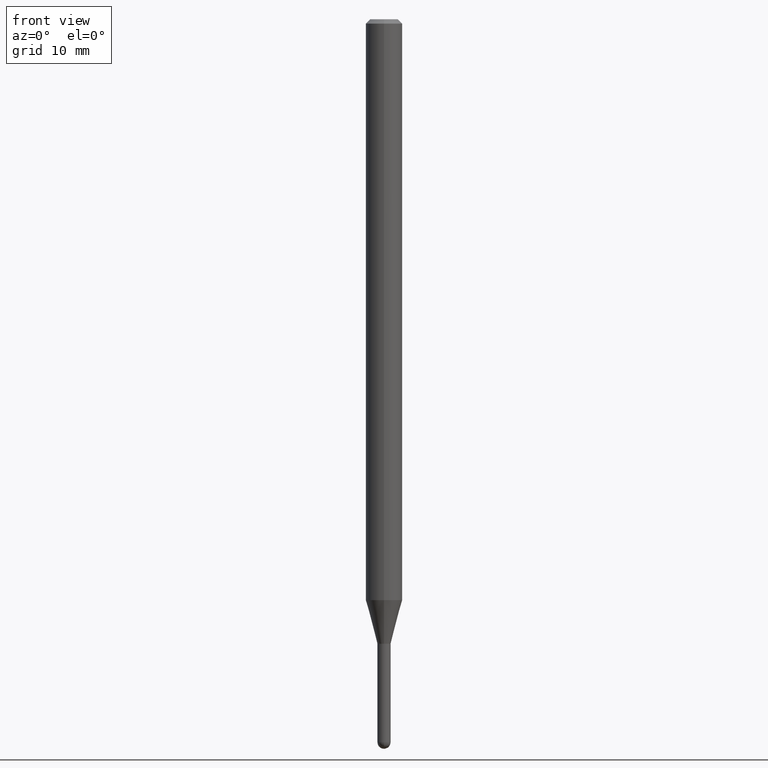
[diagram: clean part render]
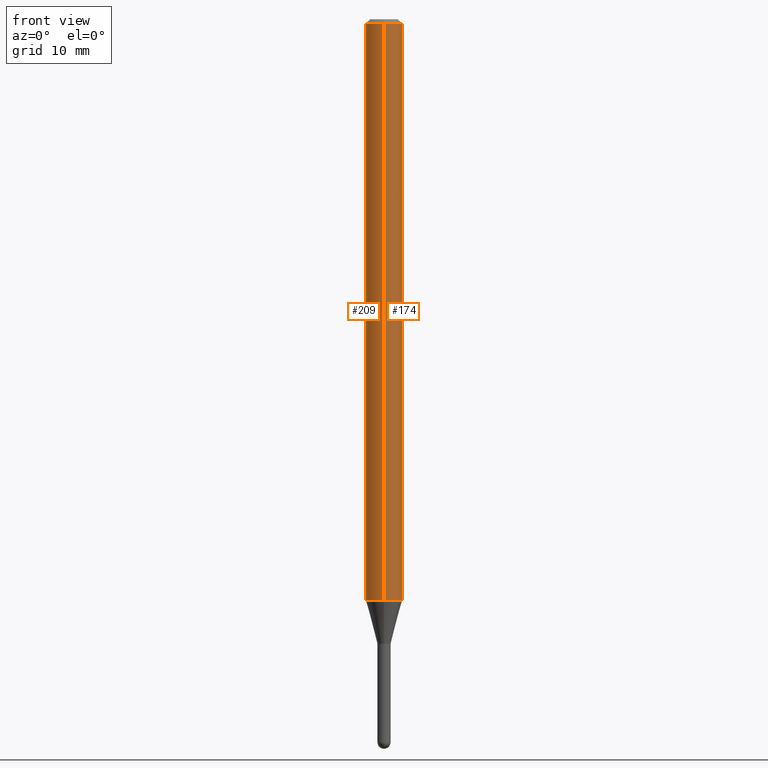
[diagram: same view with one multi-face feature highlighted, each face labeled with its STEP entity id]
A machine part, front view. The highlighted faces form ONE feature: a constant-radius fillet chain: 2 tangent blend faces with common blend radius 1.5875 mm. The faces share edges in the B-rep.
Their STEP definitions:
[1] entity #174 (Cylinder):
#39 = CARTESIAN_POINT ( 'NONE',  ( 4.868154613401735281E-29, -6.950675040332431188E-15, -1.990717967697250401 ) ) ;
#46 = DIRECTION ( 'NONE',  ( -2.445426570913478800E-29, 3.491541822156042445E-15, 1.000000000000000000 ) ) ;
#54 = ORIENTED_EDGE ( 'NONE', *, *, #250, .T. ) ;
#66 = LINE ( 'NONE', #497, #142 ) ;
#72 = FACE_OUTER_BOUND ( 'NONE', #438, .T. ) ;
#82 = CIRCLE ( 'NONE', #488, 0.06250000000000000000 ) ;
#84 = VERTEX_POINT ( 'NONE', #498 ) ;
#97 = DIRECTION ( 'NONE',  ( -2.445426570913478520E-29, 3.491541822156042445E-15, 1.000000000000000000 ) ) ;
#105 = CARTESIAN_POINT ( 'NONE',  ( 3.668139856370219951E-31, -5.237312733234067267E-17, -0.01500000000000000812 ) ) ;
#142 = VECTOR ( 'NONE', #413, 39.37007874015748143 ) ;
#145 = CYLINDRICAL_SURFACE ( 'NONE', #282, 0.06250000000000000000 ) ;
#149 = CARTESIAN_POINT ( 'NONE',  ( -4.364351673553429572E-16, -0.06250000000000695277, -1.990717967697250179 ) ) ;
#174 = ADVANCED_FACE ( 'NONE', ( #72 ), #145, .T. ) ;
#175 = VERTEX_POINT ( 'NONE', #351 ) ;
#188 = EDGE_CURVE ( 'NONE', #454, #175, #308, .T. ) ;
#223 = DIRECTION ( 'NONE',  ( -6.982962677686265922E-15, -1.000000000000000000, 3.491541822156042445E-15 ) ) ;
#230 = EDGE_CURVE ( 'NONE', #454, #479, #82, .T. ) ;
#250 = EDGE_CURVE ( 'NONE', #479, #84, #66, .T. ) ;
#254 = ORIENTED_EDGE ( 'NONE', *, *, #507, .F. ) ;
#282 = AXIS2_PLACEMENT_3D ( 'NONE', #297, #421, #223 ) ;
#286 = DIRECTION ( 'NONE',  ( -2.445426570913478520E-29, 3.491541822156042445E-15, 1.000000000000000000 ) ) ;
#297 = CARTESIAN_POINT ( 'NONE',  ( 0.000000000000000000, 0.000000000000000000, 0.000000000000000000 ) ) ;
#308 = LINE ( 'NONE', #398, #347 ) ;
#336 = DIRECTION ( 'NONE',  ( -6.982962677686265922E-15, -1.000000000000000000, 4.370956789862821150E-15 ) ) ;
#344 = CARTESIAN_POINT ( 'NONE',  ( 4.440892098501109339E-16, 0.06249999999999302641, -1.990717967697250623 ) ) ;
#347 = VECTOR ( 'NONE', #46, 39.37007874015748143 ) ;
#351 = CARTESIAN_POINT ( 'NONE',  ( -4.364351673553912750E-16, -0.06250000000000005551, -0.01499999999999979128 ) ) ;
#397 = CIRCLE ( 'NONE', #420, 0.06250000000000000000 ) ;
#398 = CARTESIAN_POINT ( 'NONE',  ( -4.364351673553916201E-16, -0.06250000000000000000, 2.182213638847526528E-16 ) ) ;
#410 = ORIENTED_EDGE ( 'NONE', *, *, #230, .T. ) ;
#413 = DIRECTION ( 'NONE',  ( -2.445426570913478800E-29, 3.491541822156042445E-15, 1.000000000000000000 ) ) ;
#418 = DIRECTION ( 'NONE',  ( -6.982962677686265922E-15, -1.000000000000000000, 3.483106191921935554E-15 ) ) ;
#419 = ORIENTED_EDGE ( 'NONE', *, *, #188, .F. ) ;
#420 = AXIS2_PLACEMENT_3D ( 'NONE', #105, #97, #418 ) ;
#421 = DIRECTION ( 'NONE',  ( -2.445426570913478520E-29, 3.491541822156042445E-15, 1.000000000000000000 ) ) ;
#438 = EDGE_LOOP ( 'NONE', ( #410, #54, #254, #419 ) ) ;
#454 = VERTEX_POINT ( 'NONE', #149 ) ;
#479 = VERTEX_POINT ( 'NONE', #344 ) ;
#488 = AXIS2_PLACEMENT_3D ( 'NONE', #39, #286, #336 ) ;
#497 = CARTESIAN_POINT ( 'NONE',  ( 4.440892098500625669E-16, 0.06250000000000000000, -2.182213638847526528E-16 ) ) ;
#498 = CARTESIAN_POINT ( 'NONE',  ( 4.440892098501117228E-16, 0.06249999999999995837, -0.01500000000000022669 ) ) ;
#507 = EDGE_CURVE ( 'NONE', #175, #84, #397, .T. ) ;
[2] entity #209 (Cylinder):
#33 = DIRECTION ( 'NONE',  ( -2.445426570913478520E-29, 3.491541822156042445E-15, 1.000000000000000000 ) ) ;
#35 = CARTESIAN_POINT ( 'NONE',  ( 4.868154613401735281E-29, -6.950675040332431188E-15, -1.990717967697250401 ) ) ;
#46 = DIRECTION ( 'NONE',  ( -2.445426570913478800E-29, 3.491541822156042445E-15, 1.000000000000000000 ) ) ;
#49 = CYLINDRICAL_SURFACE ( 'NONE', #154, 0.06250000000000000000 ) ;
#50 = CIRCLE ( 'NONE', #327, 0.06250000000000000000 ) ;
#66 = LINE ( 'NONE', #497, #142 ) ;
#70 = DIRECTION ( 'NONE',  ( -2.445426570913478520E-29, 3.491541822156042445E-15, 1.000000000000000000 ) ) ;
#77 = CARTESIAN_POINT ( 'NONE',  ( 0.000000000000000000, 0.000000000000000000, 0.000000000000000000 ) ) ;
#84 = VERTEX_POINT ( 'NONE', #498 ) ;
#88 = AXIS2_PLACEMENT_3D ( 'NONE', #35, #33, #258 ) ;
#92 = EDGE_CURVE ( 'NONE', #479, #454, #403, .T. ) ;
#122 = EDGE_LOOP ( 'NONE', ( #213, #354, #487, #412 ) ) ;
#142 = VECTOR ( 'NONE', #413, 39.37007874015748143 ) ;
#149 = CARTESIAN_POINT ( 'NONE',  ( -4.364351673553429572E-16, -0.06250000000000695277, -1.990717967697250179 ) ) ;
#154 = AXIS2_PLACEMENT_3D ( 'NONE', #77, #157, #353 ) ;
#157 = DIRECTION ( 'NONE',  ( -2.445426570913478520E-29, 3.491541822156042445E-15, 1.000000000000000000 ) ) ;
#175 = VERTEX_POINT ( 'NONE', #351 ) ;
#188 = EDGE_CURVE ( 'NONE', #454, #175, #308, .T. ) ;
#209 = ADVANCED_FACE ( 'NONE', ( #311 ), #49, .T. ) ;
#213 = ORIENTED_EDGE ( 'NONE', *, *, #250, .F. ) ;
#221 = DIRECTION ( 'NONE',  ( -6.982962677686265922E-15, -1.000000000000000000, 3.483106191921935554E-15 ) ) ;
#250 = EDGE_CURVE ( 'NONE', #479, #84, #66, .T. ) ;
#258 = DIRECTION ( 'NONE',  ( -6.982962677686265922E-15, -1.000000000000000000, 4.370956789862821150E-15 ) ) ;
#279 = EDGE_CURVE ( 'NONE', #84, #175, #50, .T. ) ;
#308 = LINE ( 'NONE', #398, #347 ) ;
#311 = FACE_OUTER_BOUND ( 'NONE', #122, .T. ) ;
#327 = AXIS2_PLACEMENT_3D ( 'NONE', #371, #70, #221 ) ;
#344 = CARTESIAN_POINT ( 'NONE',  ( 4.440892098501109339E-16, 0.06249999999999302641, -1.990717967697250623 ) ) ;
#347 = VECTOR ( 'NONE', #46, 39.37007874015748143 ) ;
#351 = CARTESIAN_POINT ( 'NONE',  ( -4.364351673553912750E-16, -0.06250000000000005551, -0.01499999999999979128 ) ) ;
#353 = DIRECTION ( 'NONE',  ( -6.982962677686265922E-15, -1.000000000000000000, 3.491541822156042445E-15 ) ) ;
#354 = ORIENTED_EDGE ( 'NONE', *, *, #92, .T. ) ;
#371 = CARTESIAN_POINT ( 'NONE',  ( 3.668139856370219951E-31, -5.237312733234067267E-17, -0.01500000000000000812 ) ) ;
#398 = CARTESIAN_POINT ( 'NONE',  ( -4.364351673553916201E-16, -0.06250000000000000000, 2.182213638847526528E-16 ) ) ;
#403 = CIRCLE ( 'NONE', #88, 0.06250000000000000000 ) ;
#412 = ORIENTED_EDGE ( 'NONE', *, *, #279, .F. ) ;
#413 = DIRECTION ( 'NONE',  ( -2.445426570913478800E-29, 3.491541822156042445E-15, 1.000000000000000000 ) ) ;
#454 = VERTEX_POINT ( 'NONE', #149 ) ;
#479 = VERTEX_POINT ( 'NONE', #344 ) ;
#487 = ORIENTED_EDGE ( 'NONE', *, *, #188, .T. ) ;
#497 = CARTESIAN_POINT ( 'NONE',  ( 4.440892098500625669E-16, 0.06250000000000000000, -2.182213638847526528E-16 ) ) ;
#498 = CARTESIAN_POINT ( 'NONE',  ( 4.440892098501117228E-16, 0.06249999999999995837, -0.01500000000000022669 ) ) ;